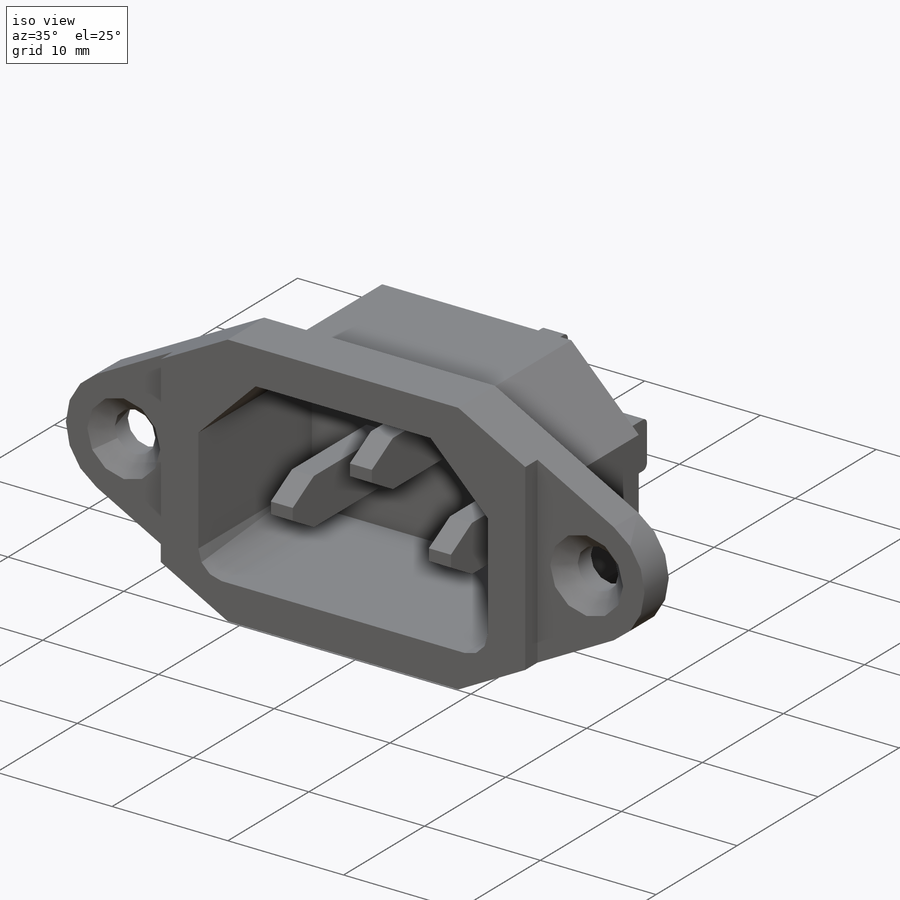
[diagram: iso view]
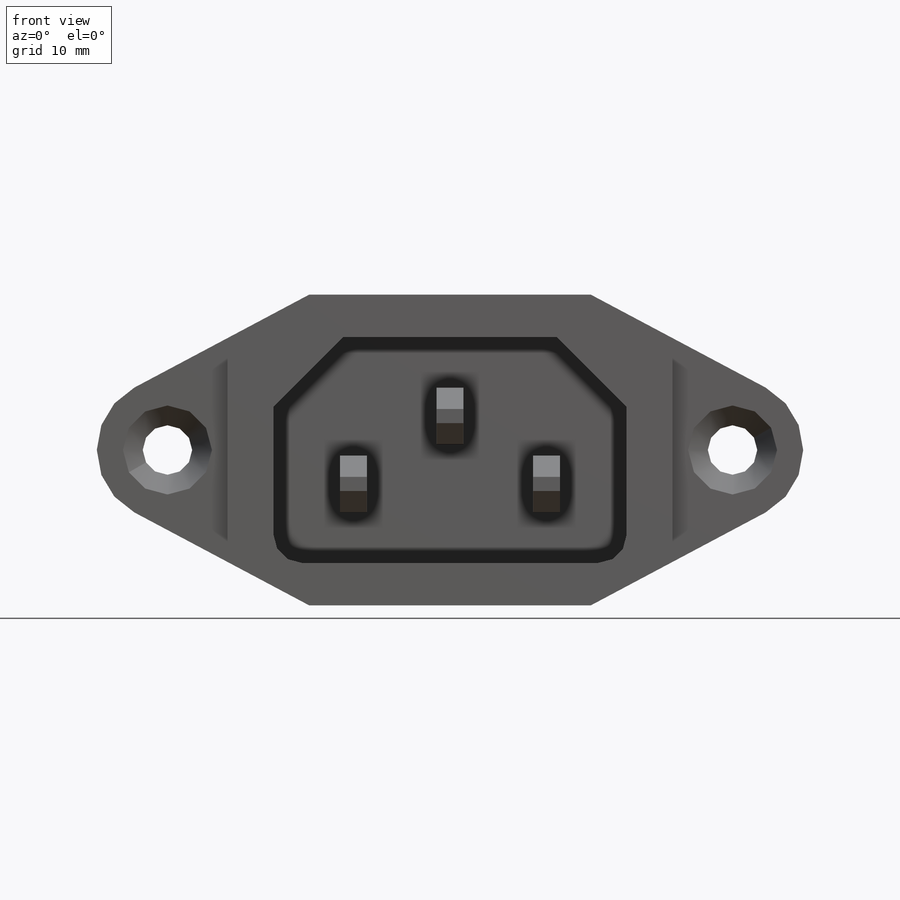
[diagram: front view]
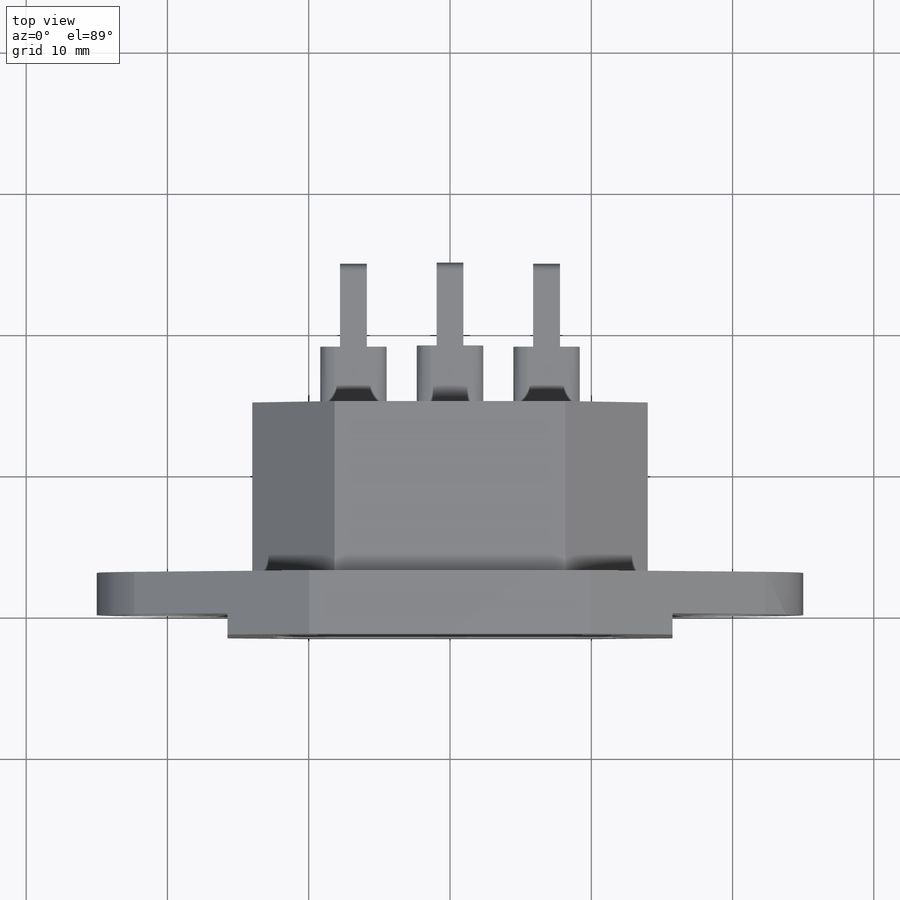
[diagram: top view]
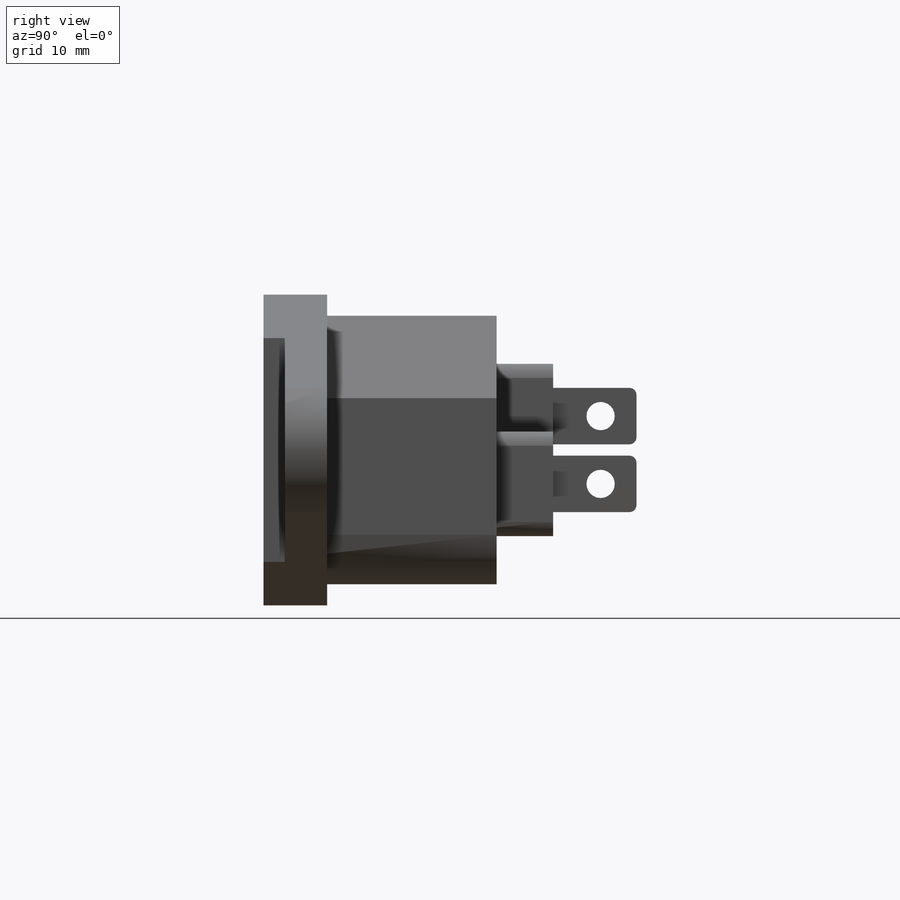
[diagram: right view]
SOLIDWORKS PART (.sldprt)
format: sldprt  version: not decoded by parser v0  size: 466,432 bytes
history: native  units: mm
features: sketch x8, extrude x6, chamfer x4, mirror x3, fillet x3, cut_extrude x2, material x1 (+11 scaffold rows collapsed)
feature tree (38):
  scaffold x11  (default folders/planes/origin — collapsed)
  material  "Material <not specified>"
  sketch  "Sketch1"  dims[c1.D1=3.5mm c1.D3=5.0mm c1.D11=2.0mm c1.D2=20.0mm c2.D3=20.0mm c2.D4=22.0mm c2.D5=~10.861409mm c3.D5=56.0deg c3.D6=25.0mm c3.D7=16.0mm c3.D8=15.0mm c3.D9=12.0mm c3.D10=5.0mm c4.D10=~40.030259deg c4.D8=5.0mm c5.D8=45.0deg c5.D9=7.0mm c5.D10=31.5mm c5.D13=1.5mm c5.D12=1.5mm]
  extrude  "Boss-Extrude1"  Depth=3mm
  extrude  "Boss-Extrude2"  [1 undecoded]
  sketch  "Sketch1<3>"  dims[D1=1.5mm]
  extrude  "Boss-Extrude3"  [1 undecoded]
  sketch  "Sketch1<4>"  dims[D1=15.0mm]
  sketch  "Sketch2"
  extrude  "Boss-Extrude4"  Depth=2.5mm
  chamfer  "Chamfer2"  Distance=1.4mm Angle=45deg
  mirror  "Mirror1"
  sketch  "Sketch4"  dims[D1=1.0mm D2=7.4mm D3=4.7mm D4=4.0mm D5=1.9mm]
  mirror  "Block1-2"
  mirror  "Block1-3"
  extrude  "Boss-Extrude5"  Depth=4mm
  cut_extrude  "Cut-Extrude1"  [1 undecoded]
  sketch  "Sketch4<2>"
  extrude  "Boss-Extrude6"  [1 undecoded]
  sketch  "Sketch4<3>"  dims[D1=9.9mm D2=14.3mm]
  fillet  "Fillet1"  Radius=0.5mm
  fillet  "Fillet2"  Radius=0.5mm
  fillet  "Fillet3"  Radius=0.5mm
  sketch  "Sketch5"  dims[D1=2.0mm D2=2.54mm]
  cut_extrude  "Cut-Extrude2"  [1 undecoded]
  chamfer  "Chamfer3"  Distance=1.5mm Angle=60deg
  chamfer  "Chamfer4"  Distance=1.5mm Angle=60deg
  chamfer  "Chamfer5"  Distance=1.5mm Angle=60deg
decode coverage: 16 of 26 modeling features carry decoded parameters
note: ~ marks probable driven/reference dimensions
note: 5 parameter values undecoded
summary: no parameter record found for 5 features
note: suppression state not decoded; provenance and decode notes live in map.json
